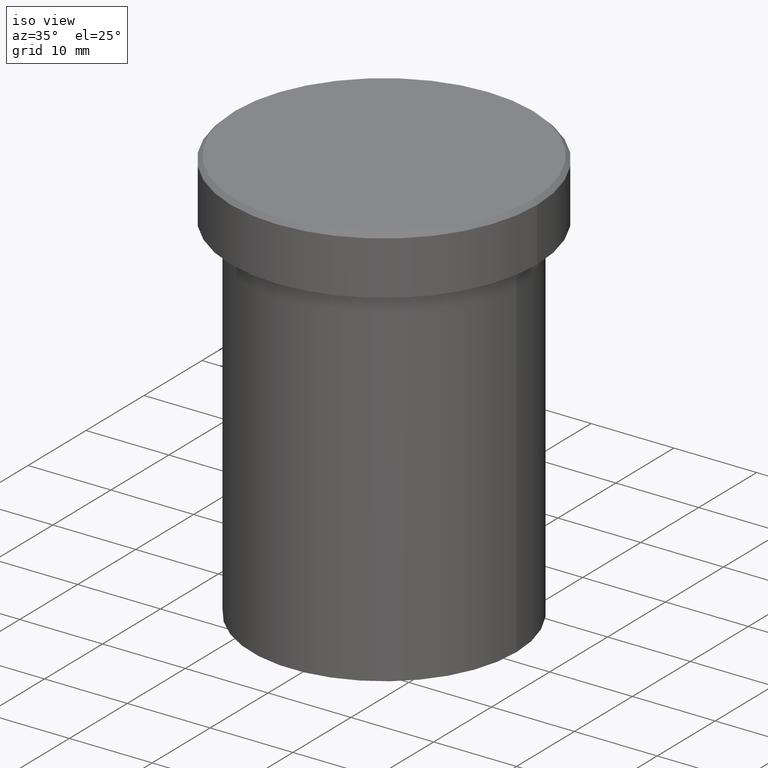
[diagram: clean part render]
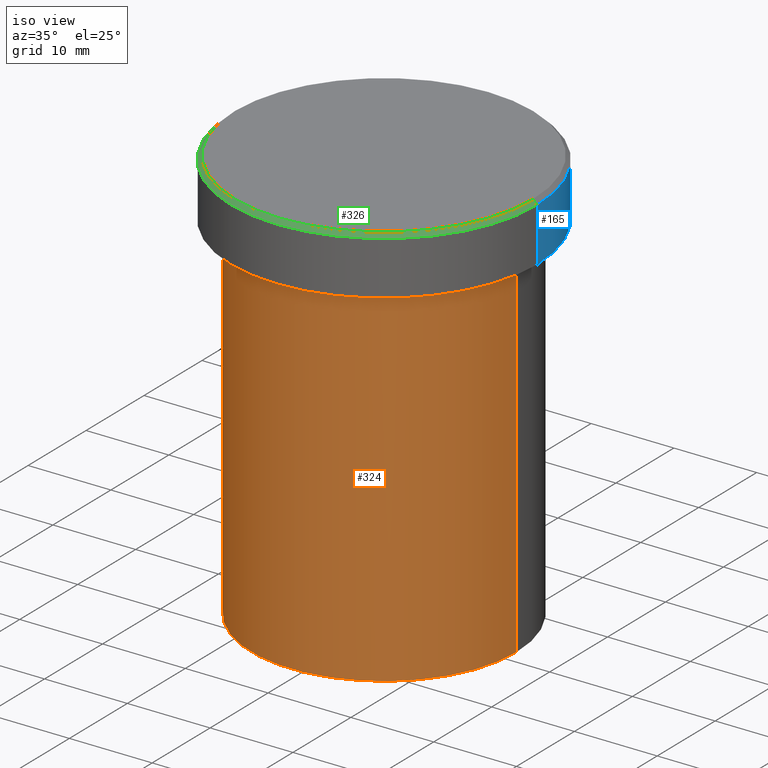
[diagram: same view with three faces highlighted in distinct colors, each labeled with its STEP entity id]
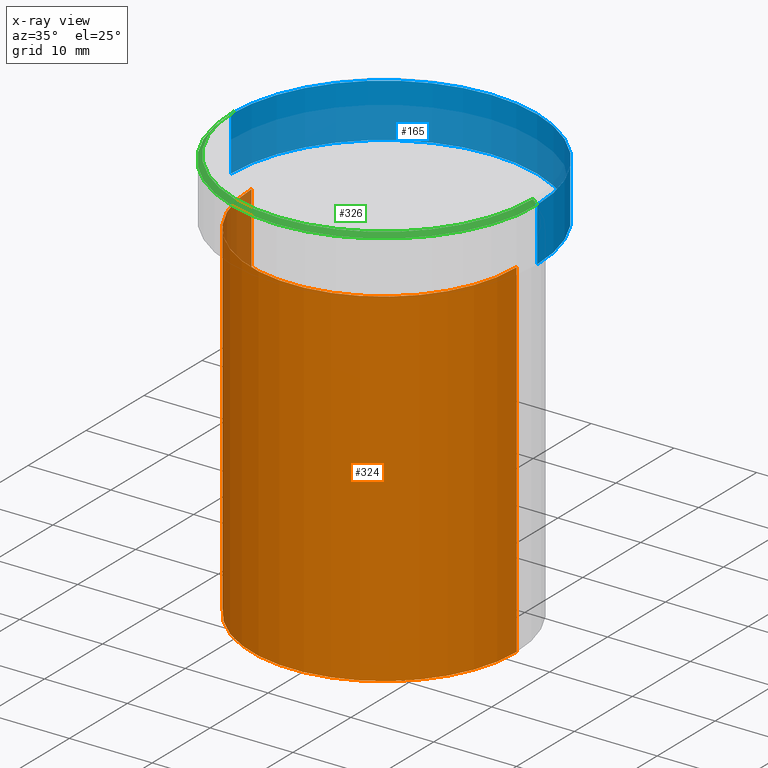
[diagram: x-ray of the same camera — body ghosted, the three highlighted faces saturated]
A machine part, iso view with three faces highlighted in distinct colors.
The next image is the same camera in x-ray (body ghosted, the three faces saturated) — at least one of them is partly hidden behind the body in this view.
Their STEP definitions:

[orange] entity #324 — the highlighted cylindrical surface (partial cylindrical patch) has radius 16 mm, axis along (-0, -0, 1).
#22 = EDGE_CURVE ( 'NONE', #76, #79, #268, .T. ) ;
#26 = VERTEX_POINT ( 'NONE', #305 ) ;
#43 = ORIENTED_EDGE ( 'NONE', *, *, #315, .F. ) ;
#59 = DIRECTION ( 'NONE',  ( -0.000000000000000000, -0.000000000000000000, 1.000000000000000000 ) ) ;
#63 = ORIENTED_EDGE ( 'NONE', *, *, #22, .T. ) ;
#66 = CIRCLE ( 'NONE', #291, 16.00000000000000000 ) ;
#76 = VERTEX_POINT ( 'NONE', #399 ) ;
#78 = CARTESIAN_POINT ( 'NONE',  ( -16.00000000000000000, 1.959434878635765131E-15, -8.000000000000000000 ) ) ;
#79 = VERTEX_POINT ( 'NONE', #207 ) ;
#83 = CARTESIAN_POINT ( 'NONE',  ( 16.00000000000000000, 0.000000000000000000, 0.000000000000000000 ) ) ;
#92 = DIRECTION ( 'NONE',  ( -0.000000000000000000, -0.000000000000000000, 1.000000000000000000 ) ) ;
#108 = AXIS2_PLACEMENT_3D ( 'NONE', #301, #312, #267 ) ;
#123 = AXIS2_PLACEMENT_3D ( 'NONE', #233, #244, #152 ) ;
#136 = EDGE_LOOP ( 'NONE', ( #325, #63, #386, #43 ) ) ;
#152 = DIRECTION ( 'NONE',  ( 1.000000000000000000, 0.000000000000000000, 0.000000000000000000 ) ) ;
#163 = CARTESIAN_POINT ( 'NONE',  ( -16.00000000000000000, 1.959434878635765131E-15, 0.000000000000000000 ) ) ;
#178 = CYLINDRICAL_SURFACE ( 'NONE', #123, 16.00000000000000000 ) ;
#191 = DIRECTION ( 'NONE',  ( -0.000000000000000000, -0.000000000000000000, 1.000000000000000000 ) ) ;
#207 = CARTESIAN_POINT ( 'NONE',  ( 16.00000000000000000, 0.000000000000000000, -50.00000000000000000 ) ) ;
#218 = VECTOR ( 'NONE', #191, 1000.000000000000000 ) ;
#233 = CARTESIAN_POINT ( 'NONE',  ( 0.000000000000000000, 0.000000000000000000, 0.000000000000000000 ) ) ;
#234 = VERTEX_POINT ( 'NONE', #78 ) ;
#244 = DIRECTION ( 'NONE',  ( -0.000000000000000000, -0.000000000000000000, 1.000000000000000000 ) ) ;
#250 = EDGE_CURVE ( 'NONE', #76, #234, #260, .T. ) ;
#254 = VECTOR ( 'NONE', #92, 1000.000000000000000 ) ;
#260 = LINE ( 'NONE', #163, #218 ) ;
#267 = DIRECTION ( 'NONE',  ( 1.000000000000000000, 0.000000000000000000, 0.000000000000000000 ) ) ;
#268 = CIRCLE ( 'NONE', #108, 16.00000000000000000 ) ;
#286 = EDGE_CURVE ( 'NONE', #79, #26, #302, .T. ) ;
#291 = AXIS2_PLACEMENT_3D ( 'NONE', #311, #59, #361 ) ;
#301 = CARTESIAN_POINT ( 'NONE',  ( 0.000000000000000000, 0.000000000000000000, -50.00000000000000000 ) ) ;
#302 = LINE ( 'NONE', #83, #254 ) ;
#305 = CARTESIAN_POINT ( 'NONE',  ( 16.00000000000000000, 0.000000000000000000, -8.000000000000000000 ) ) ;
#311 = CARTESIAN_POINT ( 'NONE',  ( 0.000000000000000000, 0.000000000000000000, -8.000000000000000000 ) ) ;
#312 = DIRECTION ( 'NONE',  ( -0.000000000000000000, -0.000000000000000000, 1.000000000000000000 ) ) ;
#315 = EDGE_CURVE ( 'NONE', #234, #26, #66, .T. ) ;
#324 = ADVANCED_FACE ( 'NONE', ( #363 ), #178, .T. ) ;
#325 = ORIENTED_EDGE ( 'NONE', *, *, #250, .F. ) ;
#361 = DIRECTION ( 'NONE',  ( 1.000000000000000000, 0.000000000000000000, 0.000000000000000000 ) ) ;
#363 = FACE_OUTER_BOUND ( 'NONE', #136, .T. ) ;
#386 = ORIENTED_EDGE ( 'NONE', *, *, #286, .T. ) ;
#399 = CARTESIAN_POINT ( 'NONE',  ( -16.00000000000000000, 1.959434878635765131E-15, -50.00000000000000000 ) ) ;

[blue] entity #165 — the highlighted cylindrical surface (partial cylindrical patch) has radius 18.5 mm, axis along (-0, -0, 1).
#10 = VERTEX_POINT ( 'NONE', #147 ) ;
#18 = CIRCLE ( 'NONE', #348, 18.50000000000000000 ) ;
#20 = DIRECTION ( 'NONE',  ( -0.000000000000000000, -0.000000000000000000, 1.000000000000000000 ) ) ;
#23 = CARTESIAN_POINT ( 'NONE',  ( 0.000000000000000000, 0.000000000000000000, -0.5000000000000004441 ) ) ;
#36 = EDGE_CURVE ( 'NONE', #143, #10, #93, .T. ) ;
#60 = VERTEX_POINT ( 'NONE', #181 ) ;
#72 = VECTOR ( 'NONE', #247, 1000.000000000000000 ) ;
#81 = EDGE_CURVE ( 'NONE', #356, #60, #179, .T. ) ;
#93 = LINE ( 'NONE', #242, #346 ) ;
#98 = CARTESIAN_POINT ( 'NONE',  ( 0.000000000000000000, 0.000000000000000000, 0.000000000000000000 ) ) ;
#112 = ORIENTED_EDGE ( 'NONE', *, *, #243, .T. ) ;
#127 = DIRECTION ( 'NONE',  ( -0.000000000000000000, -0.000000000000000000, 1.000000000000000000 ) ) ;
#137 = CARTESIAN_POINT ( 'NONE',  ( 0.000000000000000000, 0.000000000000000000, -6.999999999999999112 ) ) ;
#142 = EDGE_LOOP ( 'NONE', ( #112, #265, #227, #259 ) ) ;
#143 = VERTEX_POINT ( 'NONE', #271 ) ;
#146 = CARTESIAN_POINT ( 'NONE',  ( -18.50000000000000000, 2.265596578422603396E-15, -6.999999999999999112 ) ) ;
#147 = CARTESIAN_POINT ( 'NONE',  ( 18.50000000000000000, 0.000000000000000000, -0.5000000000000004441 ) ) ;
#150 = DIRECTION ( 'NONE',  ( 1.000000000000000000, 0.000000000000000000, 0.000000000000000000 ) ) ;
#165 = ADVANCED_FACE ( 'NONE', ( #287 ), #214, .T. ) ;
#179 = LINE ( 'NONE', #310, #72 ) ;
#181 = CARTESIAN_POINT ( 'NONE',  ( -18.50000000000000000, 2.265596578422603396E-15, -0.5000000000000004441 ) ) ;
#182 = CIRCLE ( 'NONE', #183, 18.50000000000000000 ) ;
#183 = AXIS2_PLACEMENT_3D ( 'NONE', #137, #385, #382 ) ;
#214 = CYLINDRICAL_SURFACE ( 'NONE', #372, 18.50000000000000000 ) ;
#227 = ORIENTED_EDGE ( 'NONE', *, *, #397, .T. ) ;
#240 = DIRECTION ( 'NONE',  ( 0.000000000000000000, 0.000000000000000000, -1.000000000000000000 ) ) ;
#242 = CARTESIAN_POINT ( 'NONE',  ( 18.50000000000000000, 0.000000000000000000, 0.000000000000000000 ) ) ;
#243 = EDGE_CURVE ( 'NONE', #143, #356, #182, .T. ) ;
#247 = DIRECTION ( 'NONE',  ( -0.000000000000000000, -0.000000000000000000, 1.000000000000000000 ) ) ;
#259 = ORIENTED_EDGE ( 'NONE', *, *, #36, .F. ) ;
#265 = ORIENTED_EDGE ( 'NONE', *, *, #81, .T. ) ;
#271 = CARTESIAN_POINT ( 'NONE',  ( 18.50000000000000000, 0.000000000000000000, -6.999999999999999112 ) ) ;
#287 = FACE_OUTER_BOUND ( 'NONE', #142, .T. ) ;
#310 = CARTESIAN_POINT ( 'NONE',  ( -18.50000000000000000, 2.265596578422603396E-15, 0.000000000000000000 ) ) ;
#346 = VECTOR ( 'NONE', #20, 1000.000000000000000 ) ;
#348 = AXIS2_PLACEMENT_3D ( 'NONE', #23, #240, #150 ) ;
#356 = VERTEX_POINT ( 'NONE', #146 ) ;
#372 = AXIS2_PLACEMENT_3D ( 'NONE', #98, #127, #409 ) ;
#382 = DIRECTION ( 'NONE',  ( 1.000000000000000000, 0.000000000000000000, 0.000000000000000000 ) ) ;
#385 = DIRECTION ( 'NONE',  ( -0.000000000000000000, -0.000000000000000000, 1.000000000000000000 ) ) ;
#397 = EDGE_CURVE ( 'NONE', #60, #10, #18, .T. ) ;
#409 = DIRECTION ( 'NONE',  ( 1.000000000000000000, 0.000000000000000000, 0.000000000000000000 ) ) ;

[green] entity #326 — the highlighted conical surface has half-angle 45 deg.
#10 = VERTEX_POINT ( 'NONE', #147 ) ;
#12 = CARTESIAN_POINT ( 'NONE',  ( -18.00000000000000355, 0.000000000000000000, 0.000000000000000000 ) ) ;
#13 = EDGE_CURVE ( 'NONE', #177, #10, #153, .T. ) ;
#16 = AXIS2_PLACEMENT_3D ( 'NONE', #338, #90, #201 ) ;
#24 = EDGE_LOOP ( 'NONE', ( #84, #140, #51, #175 ) ) ;
#25 = CARTESIAN_POINT ( 'NONE',  ( 0.000000000000000000, 0.000000000000000000, 0.000000000000000000 ) ) ;
#31 = LINE ( 'NONE', #280, #141 ) ;
#40 = EDGE_CURVE ( 'NONE', #113, #177, #65, .T. ) ;
#41 = VECTOR ( 'NONE', #245, 1000.000000000000114 ) ;
#44 = AXIS2_PLACEMENT_3D ( 'NONE', #25, #202, #309 ) ;
#51 = ORIENTED_EDGE ( 'NONE', *, *, #155, .T. ) ;
#60 = VERTEX_POINT ( 'NONE', #181 ) ;
#65 = CIRCLE ( 'NONE', #16, 18.00000000000000355 ) ;
#84 = ORIENTED_EDGE ( 'NONE', *, *, #13, .F. ) ;
#90 = DIRECTION ( 'NONE',  ( -0.000000000000000000, -0.000000000000000000, 1.000000000000000000 ) ) ;
#110 = EDGE_CURVE ( 'NONE', #10, #60, #334, .T. ) ;
#113 = VERTEX_POINT ( 'NONE', #12 ) ;
#115 = CARTESIAN_POINT ( 'NONE',  ( 0.000000000000000000, 0.000000000000000000, -0.5000000000000004441 ) ) ;
#135 = CARTESIAN_POINT ( 'NONE',  ( 18.00000000000000355, 2.234980408443919609E-15, 0.000000000000000000 ) ) ;
#140 = ORIENTED_EDGE ( 'NONE', *, *, #40, .F. ) ;
#141 = VECTOR ( 'NONE', #252, 1000.000000000000114 ) ;
#147 = CARTESIAN_POINT ( 'NONE',  ( 18.50000000000000000, 0.000000000000000000, -0.5000000000000004441 ) ) ;
#153 = LINE ( 'NONE', #394, #41 ) ;
#155 = EDGE_CURVE ( 'NONE', #113, #60, #31, .T. ) ;
#175 = ORIENTED_EDGE ( 'NONE', *, *, #110, .F. ) ;
#177 = VERTEX_POINT ( 'NONE', #135 ) ;
#181 = CARTESIAN_POINT ( 'NONE',  ( -18.50000000000000000, 2.265596578422603396E-15, -0.5000000000000004441 ) ) ;
#199 = CONICAL_SURFACE ( 'NONE', #44, 18.00000000000000355, 0.7853981633974447263 ) ;
#201 = DIRECTION ( 'NONE',  ( 1.000000000000000000, 0.000000000000000000, 0.000000000000000000 ) ) ;
#202 = DIRECTION ( 'NONE',  ( 0.000000000000000000, 0.000000000000000000, -1.000000000000000000 ) ) ;
#245 = DIRECTION ( 'NONE',  ( 0.7071067811865451302, 8.659560562354903276E-17, -0.7071067811865500152 ) ) ;
#252 = DIRECTION ( 'NONE',  ( -0.7071067811865451302, 0.000000000000000000, -0.7071067811865500152 ) ) ;
#276 = DIRECTION ( 'NONE',  ( 0.000000000000000000, 0.000000000000000000, -1.000000000000000000 ) ) ;
#280 = CARTESIAN_POINT ( 'NONE',  ( -18.00000000000000355, 0.000000000000000000, 0.000000000000000000 ) ) ;
#309 = DIRECTION ( 'NONE',  ( -1.000000000000000000, 0.000000000000000000, 0.000000000000000000 ) ) ;
#326 = ADVANCED_FACE ( 'NONE', ( #355 ), #199, .T. ) ;
#334 = CIRCLE ( 'NONE', #381, 18.50000000000000000 ) ;
#338 = CARTESIAN_POINT ( 'NONE',  ( 0.000000000000000000, 0.000000000000000000, 0.000000000000000000 ) ) ;
#355 = FACE_OUTER_BOUND ( 'NONE', #24, .T. ) ;
#367 = DIRECTION ( 'NONE',  ( 1.000000000000000000, 0.000000000000000000, 0.000000000000000000 ) ) ;
#381 = AXIS2_PLACEMENT_3D ( 'NONE', #115, #276, #367 ) ;
#394 = CARTESIAN_POINT ( 'NONE',  ( 18.00000000000000355, 2.204364238465235822E-15, 0.000000000000000000 ) ) ;